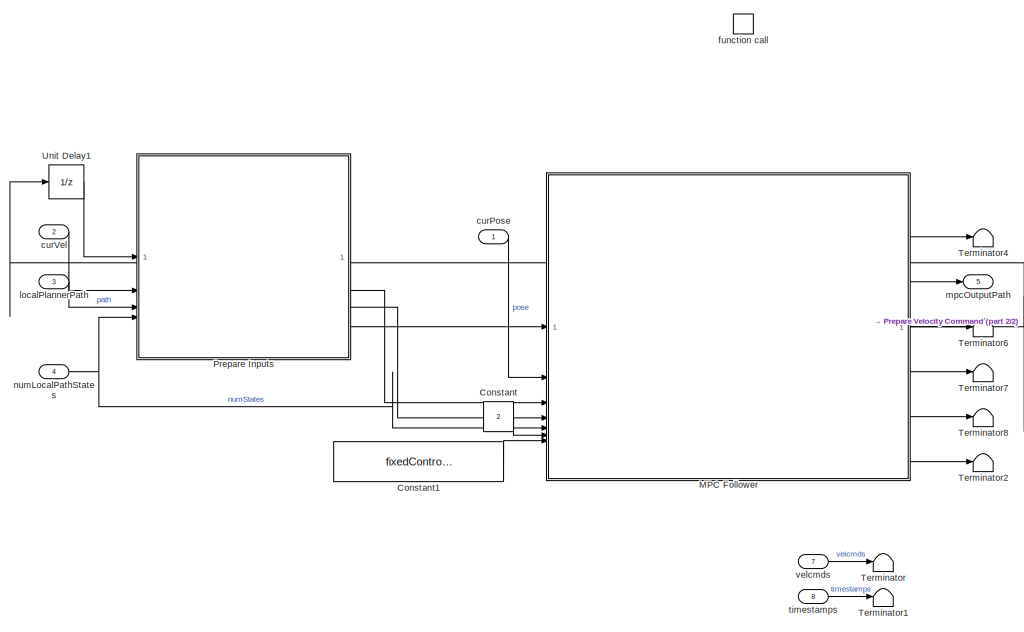
[diagram: root canvas - part 1/2, left side, full height]
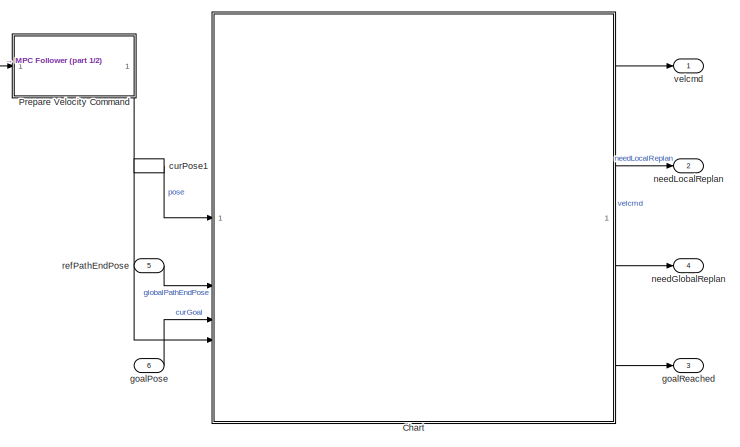
[diagram: root canvas - part 2/2, bottom right region]
MODEL slx_0d9bcbd0d9a9
KIND model
CONFIG AbsTol = auto
CONFIG EnableMultiTasking = off
CONFIG FixedStep = 0.1
CONFIG MaxStep = auto
CONFIG MinStep = auto
CONFIG RelTol = 1e-3
CONFIG SampleTimeConstraint = Unconstrained
CONFIG SolverName = FixedStepAuto
CONFIG StartFcn = % clf\n% rng(1,"twister");\n% set_param([bdroot(gcb) '/TaskControllerIn/Simulink Signals/Confirm New Goal/newGoalBlock'],'Value','goalPose');
CONFIG StartTime = 0.0
CONFIG StopTime = inf
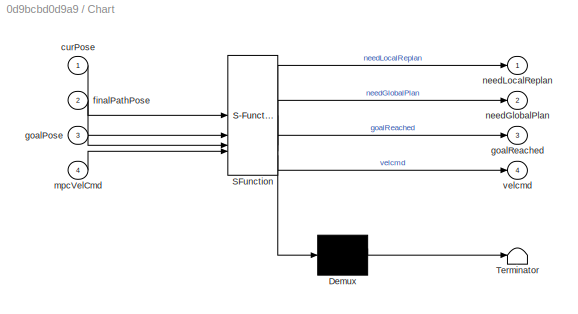
BLOCK [SubSystem] Chart
  ErrorFcn = Stateflow.Translate.translate
  PermitHierarchicalResolution = ExplicitOnly
  PortSchema = {"entries":[{"content":{"sides":[{"content":{"connectorIds":["In4","In1","In2","In3"]},"type":"ConnectorPlacement.EquallySpacedRectSide","uuid":"08395831-dbae-49cf-844d-729862efb56c"},{"content":{"connectorIds":["Out4","Out1","Out2","Out3"],"side":"RIGHT"},"type":"ConnectorPlacement.EquallySpacedRectSide","uuid":"7aab2f4b-f147-41f5-84a6-1ccf26292ffc"},{"content":{"side":"TOP"},"type":"ConnectorPla...<+261ch>
  SFBlockType = Chart
  TreatAsAtomicUnit = on
BLOCK [Demux] Chart/ Demux 
  Outputs = 1
BLOCK [S-Function] Chart/ SFunction 
  EnableBusSupport = on
  FunctionName = sf_sfun
  PortCounts = [4 5]
  SFcnIsStateOwnerBlock = off
  SFunctionDeploymentMode = off
  Tag = Stateflow S-Function 2
BLOCK [Terminator] Chart/ Terminator 
BLOCK [Inport] Chart/curPose
BLOCK [Inport] Chart/finalPathPose
  Port = 2
BLOCK [Inport] Chart/goalPose
  Port = 3
BLOCK [Outport] Chart/goalReached
  Port = 3
BLOCK [Inport] Chart/mpcVelCmd
  Port = 4
BLOCK [Outport] Chart/needGlobalPlan
  Port = 2
BLOCK [Outport] Chart/needLocalReplan
BLOCK [Outport] Chart/velcmd
  Port = 4
BLOCK [Constant] Constant
  Value = 2
BLOCK [Constant] Constant1
  Value = fixedControllerParams.Length
BLOCK [ModelReference] MPC Follower
  ModelNameDialog = MPCFollower.slx
  ModelReferenceVersion = 2.3
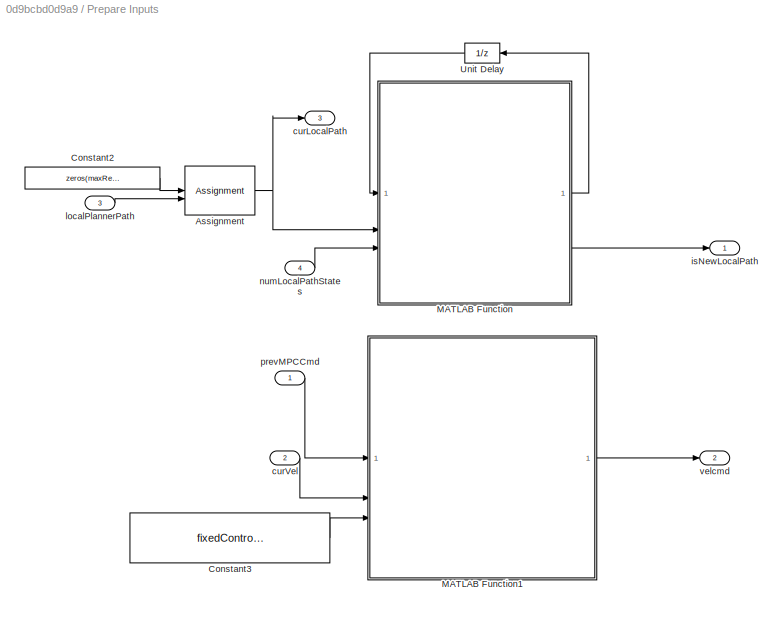
BLOCK [SubSystem] Prepare Inputs
BLOCK [Assignment] Prepare Inputs/Assignment
  DiagnosticForDimensions = Warning
  IndexOptions = Starting index (dialog),Starting index (dialog)
  Indices = 1,1
  NumberOfDimensions = 2
  OutputSizes = 1,1
BLOCK [Constant] Prepare Inputs/Constant2
  Value = zeros(maxRefPathLen,3)
BLOCK [Constant] Prepare Inputs/Constant3
  Value = fixedControllerParams.Length
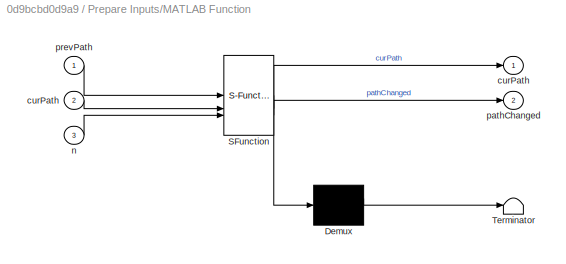
BLOCK [SubSystem] Prepare Inputs/MATLAB Function
  ErrorFcn = Stateflow.Translate.translate
  PermitHierarchicalResolution = ExplicitOnly
  SFBlockType = MATLAB Function
  TreatAsAtomicUnit = on
BLOCK [Demux] Prepare Inputs/MATLAB Function/ Demux 
  Outputs = 1
BLOCK [S-Function] Prepare Inputs/MATLAB Function/ SFunction 
  EnableBusSupport = on
  FunctionName = sf_sfun
  PortCounts = [3 3]
  SFcnIsStateOwnerBlock = off
  SFunctionDeploymentMode = off
  Tag = Stateflow S-Function 5
BLOCK [Terminator] Prepare Inputs/MATLAB Function/ Terminator 
BLOCK [Outport] Prepare Inputs/MATLAB Function/curPath
BLOCK [Inport] Prepare Inputs/MATLAB Function/curPath 
  Port = 2
BLOCK [Inport] Prepare Inputs/MATLAB Function/n
  Port = 3
BLOCK [Outport] Prepare Inputs/MATLAB Function/pathChanged
  Port = 2
BLOCK [Inport] Prepare Inputs/MATLAB Function/prevPath
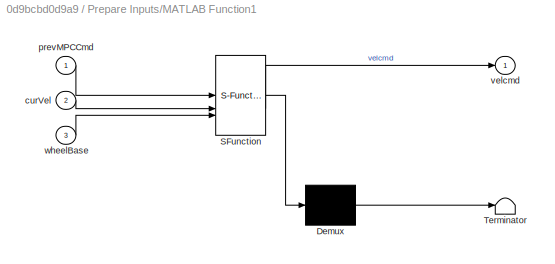
BLOCK [SubSystem] Prepare Inputs/MATLAB Function1
  ErrorFcn = Stateflow.Translate.translate
  PermitHierarchicalResolution = ExplicitOnly
  SFBlockType = MATLAB Function
  TreatAsAtomicUnit = on
BLOCK [Demux] Prepare Inputs/MATLAB Function1/ Demux 
  Outputs = 1
BLOCK [S-Function] Prepare Inputs/MATLAB Function1/ SFunction 
  EnableBusSupport = on
  FunctionName = sf_sfun
  PortCounts = [3 2]
  SFcnIsStateOwnerBlock = off
  SFunctionDeploymentMode = off
  Tag = Stateflow S-Function 10
BLOCK [Terminator] Prepare Inputs/MATLAB Function1/ Terminator 
BLOCK [Inport] Prepare Inputs/MATLAB Function1/curVel
  Port = 2
BLOCK [Inport] Prepare Inputs/MATLAB Function1/prevMPCCmd
BLOCK [Outport] Prepare Inputs/MATLAB Function1/velcmd
BLOCK [Inport] Prepare Inputs/MATLAB Function1/wheelBase
  Port = 3
BLOCK [UnitDelay] Prepare Inputs/Unit Delay
  HasFrameUpgradeWarning = on
  NameLocation = top
  SampleTime = -1
BLOCK [Outport] Prepare Inputs/curLocalPath 
  Port = 3
BLOCK [Inport] Prepare Inputs/curVel
  NameLocation = top
  Port = 2
  SampleTime = nlobjTracking.Ts
BLOCK [Outport] Prepare Inputs/isNewLocalPath
BLOCK [Inport] Prepare Inputs/localPlannerPath
  Port = 3
  SampleTime = nlobjTracking.Ts
BLOCK [Inport] Prepare Inputs/numLocalPathStates
  Port = 4
  SampleTime = nlobjTracking.Ts
BLOCK [Inport] Prepare Inputs/prevMPCCmd
BLOCK [Outport] Prepare Inputs/velcmd
  Port = 2
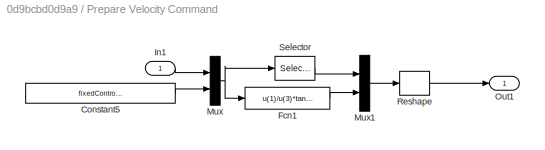
BLOCK [SubSystem] Prepare Velocity Command
BLOCK [Constant] Prepare Velocity Command/Constant5
  Value = fixedControllerParams.Length
BLOCK [Fcn] Prepare Velocity Command/Fcn1
  Expr = u(1)/u(3)*tan(u(2))
BLOCK [Inport] Prepare Velocity Command/In1
BLOCK [Mux] Prepare Velocity Command/Mux
  DisplayOption = bar
  Inputs = 2
BLOCK [Mux] Prepare Velocity Command/Mux1
  DisplayOption = bar
  Inputs = 2
BLOCK [Outport] Prepare Velocity Command/Out1
BLOCK [Reshape] Prepare Velocity Command/Reshape
  OutputDimensionality = Row vector (2-D)
BLOCK [Selector] Prepare Velocity Command/Selector
  IndexOptions = Index vector (dialog)
  Indices = 1
  InputPortWidth = 3
  OutputSizes = 1
BLOCK [Terminator] Terminator
BLOCK [Terminator] Terminator1
BLOCK [Terminator] Terminator2
BLOCK [Terminator] Terminator4
BLOCK [Terminator] Terminator6
BLOCK [Terminator] Terminator7
BLOCK [Terminator] Terminator8
BLOCK [UnitDelay] Unit Delay1
  HasFrameUpgradeWarning = on
  NameLocation = top
  SampleTime = -1
BLOCK [Inport] curPose
  NameLocation = top
  OutDataTypeStr = double
  PortDimensions = 3
  SampleTime = nlobjTracking.Ts
  SamplingMode = Sample based
  SignalType = real
BLOCK [InportShadow] curPose1
  OutDataTypeStr = double
  PortDimensions = 3
  SampleTime = nlobjTracking.Ts
  SamplingMode = Sample based
  SignalType = real
BLOCK [Inport] curVel
  NameLocation = top
  OutDataTypeStr = double
  Port = 2
  PortDimensions = [1 2]
  SampleTime = nlobjTracking.Ts
  SamplingMode = Sample based
  SignalType = real
BLOCK [TriggerPort] function call
  PortDimensions = 1
  SampleTime = nlobjTracking.Ts
  SampleTimeType = periodic
  StatesWhenEnabling = held
  TriggerSignalSampleTime = [0.10000000000000001,0]
  TriggerType = function-call
  VariantControl = (inherit)
BLOCK [Inport] goalPose
  OutDataTypeStr = double
  Port = 6
  PortDimensions = [1 3]
  SamplingMode = Sample based
  SignalType = real
BLOCK [Outport] goalReached
  InitialOutput = 0
  OutDataTypeStr = boolean
  OutputWhenDisabled = reset
  Port = 3
  PortDimensions = 1
  SamplingMode = Sample based
  SignalType = real
BLOCK [Inport] localPlannerPath
  OutDataTypeStr = double
  Port = 3
  PortDimensions = [1000 3]
  SampleTime = nlobjTracking.Ts
  SamplingMode = Sample based
  SignalType = real
BLOCK [Outport] mpcOutputPath
  Port = 5
BLOCK [Outport] needGlobalReplan
  InitialOutput = 0
  OutDataTypeStr = boolean
  OutputWhenDisabled = reset
  Port = 4
  PortDimensions = 1
  SamplingMode = Sample based
  SignalType = real
BLOCK [Outport] needLocalReplan
  InitialOutput = 0
  OutDataTypeStr = boolean
  OutputWhenDisabled = reset
  Port = 2
  PortDimensions = 1
  SamplingMode = Sample based
  SignalType = real
BLOCK [Inport] numLocalPathStates
  NameLocation = top
  OutDataTypeStr = double
  Port = 4
  PortDimensions = 1
  SampleTime = nlobjTracking.Ts
  SamplingMode = Sample based
  SignalType = real
BLOCK [Inport] refPathEndPose
  OutDataTypeStr = double
  Port = 5
  PortDimensions = [1 3]
  SamplingMode = Sample based
  SignalType = real
BLOCK [Inport] timestamps
  OutDataTypeStr = double
  Port = 8
  PortDimensions = [1000 1]
  SamplingMode = Sample based
  SignalType = real
BLOCK [Outport] velcmd
  OutDataTypeStr = double
  PortDimensions = [1 2]
  SamplingMode = Sample based
  SignalType = real
BLOCK [Inport] velcmds
  OutDataTypeStr = double
  Port = 7
  PortDimensions = [1000 2]
  SamplingMode = Sample based
  SignalType = real
LINE Chart:1 -> needLocalReplan:1
LINE Chart:2 -> needGlobalReplan:1
LINE Chart:3 -> goalReached:1
LINE Chart:4 -> velcmd:1
LINE Constant1:1 -> MPC Follower:7
LINE Constant:1 -> MPC Follower:6
NET MPC Follower:1 -> Prepare Velocity Command:1, Unit Delay1:1
LINE MPC Follower:2 -> Terminator4:1
LINE MPC Follower:3 -> mpcOutputPath:1
LINE MPC Follower:4 -> Terminator6:1
LINE MPC Follower:5 -> Terminator7:1
LINE MPC Follower:6 -> Terminator8:1
LINE MPC Follower:7 -> Terminator2:1
NET Prepare Inputs/Assignment:1 -> Prepare Inputs/MATLAB Function:2, Prepare Inputs/curLocalPath :1
LINE Prepare Inputs/Constant2:1 -> Prepare Inputs/Assignment:1
LINE Prepare Inputs/Constant3:1 -> Prepare Inputs/MATLAB Function1:3
LINE Prepare Inputs/MATLAB Function1:1 -> Prepare Inputs/velcmd:1
LINE Prepare Inputs/MATLAB Function:1 -> Prepare Inputs/Unit Delay:1
LINE Prepare Inputs/MATLAB Function:2 -> Prepare Inputs/isNewLocalPath:1
LINE Prepare Inputs/Unit Delay:1 -> Prepare Inputs/MATLAB Function:1
LINE Prepare Inputs/curVel:1 -> Prepare Inputs/MATLAB Function1:2
LINE Prepare Inputs/localPlannerPath:1 -> Prepare Inputs/Assignment:2
LINE Prepare Inputs/numLocalPathStates:1 -> Prepare Inputs/MATLAB Function:3
LINE Prepare Inputs/prevMPCCmd:1 -> Prepare Inputs/MATLAB Function1:1
LINE Prepare Inputs:1 -> MPC Follower:1
LINE Prepare Inputs:2 -> MPC Follower:3
LINE Prepare Inputs:3 -> MPC Follower:4
LINE Prepare Velocity Command/Constant5:1 -> Prepare Velocity Command/Mux:2
LINE Prepare Velocity Command/Fcn1:1 -> Prepare Velocity Command/Mux1:2
LINE Prepare Velocity Command/In1:1 -> Prepare Velocity Command/Mux:1
LINE Prepare Velocity Command/Mux1:1 -> Prepare Velocity Command/Reshape:1
NET Prepare Velocity Command/Mux:1 -> Prepare Velocity Command/Fcn1:1, Prepare Velocity Command/Selector:1
LINE Prepare Velocity Command/Reshape:1 -> Prepare Velocity Command/Out1:1
LINE Prepare Velocity Command/Selector:1 -> Prepare Velocity Command/Mux1:1
LINE Prepare Velocity Command:1 -> Chart:4
LINE Unit Delay1:1 -> Prepare Inputs:1
LINE curPose1:1 -> Chart:1
LINE curPose:1 -> MPC Follower:2
LINE curVel:1 -> Prepare Inputs:2
LINE goalPose:1 -> Chart:3
LINE localPlannerPath:1 -> Prepare Inputs:3
NET numLocalPathStates:1 -> MPC Follower:5, Prepare Inputs:4
LINE refPathEndPose:1 -> Chart:2
LINE timestamps:1 -> Terminator1:1
LINE velcmds:1 -> Terminator:1
note: NET lines group one-source signal fan-out (src -> all destinations, sorted); 1:1 wires keep LINE
CHART Chart states=1 transitions=7
  STATE_LABEL 'isReached = poseReached(pose,targetPose,threshold,orientationWeight)'
  STATE_LABEL 'SCRIPT:\nfunction isReached = poseReached(pose,targetPose,threshold,orientationWeight)\n    arguments\n        pose (1,3)\n        targetPose (1,3)\n        threshold (1,1) {mustBePositive} = 1;\n        orientationWeight (1,1) {mustBeInRange(orientationWeight,0,1)} = 0;\n    end\n    dv = (pose-targetPose);\n    dist = norm(dv.* [1 1 orientationWeight],2);\n    isReached = dist <= threshold;\nend'
CHART Prepare Inputs/MATLAB Function states=1 transitions=1
  STATE_LABEL 'eML_blk_kernel()'
  STATE_LABEL 'SCRIPT:\nfunction [curPath,pathChanged] = didPathChange(prevPath, curPath, n)\n    pathChanged = double(~isequal(curPath(1:n,:),prevPath(1:n,:)));\nend'
CHART Prepare Inputs/MATLAB Function1 states=1 transitions=1
  STATE_LABEL 'eML_blk_kernel()'
  STATE_LABEL 'SCRIPT:\nfunction velcmd = vel2mpc(prevMPCCmd,curVel,wheelBase)\nvelcmd = curVel;\nif velcmd(1) == 0\n    % Use previous steering angle when velocity is 0\n    velcmd(2) = prevMPCCmd(2);\nelse\n    % Otherwise compute it from turn-rate\n    velcmd(2) = atan(curVel(2)*wheelBase/velcmd(1));\nend\n'
CHART  states=0 transitions=0
CHART  states=0 transitions=0
CHART  states=0 transitions=0
